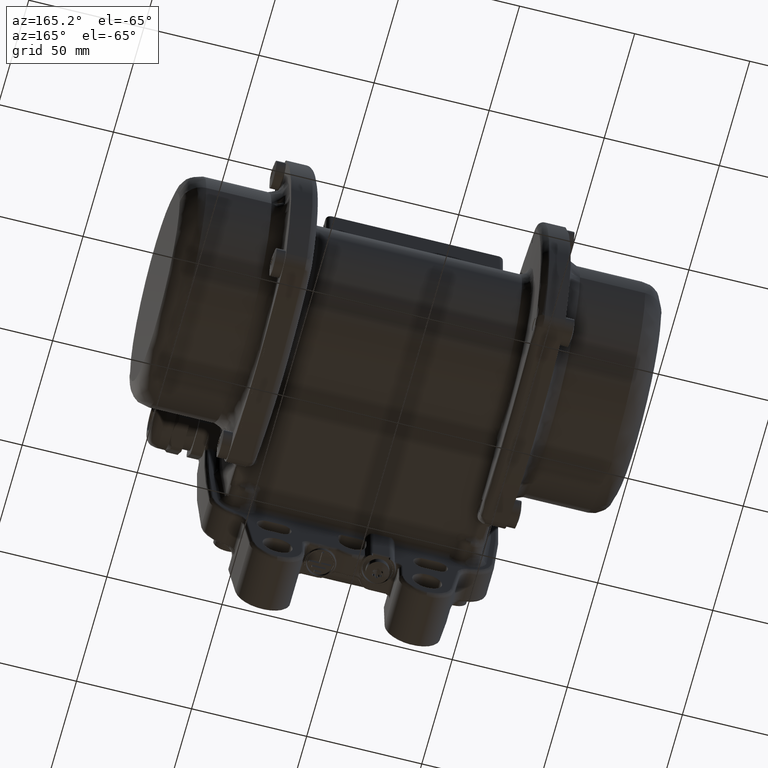
[diagram: clean part render]
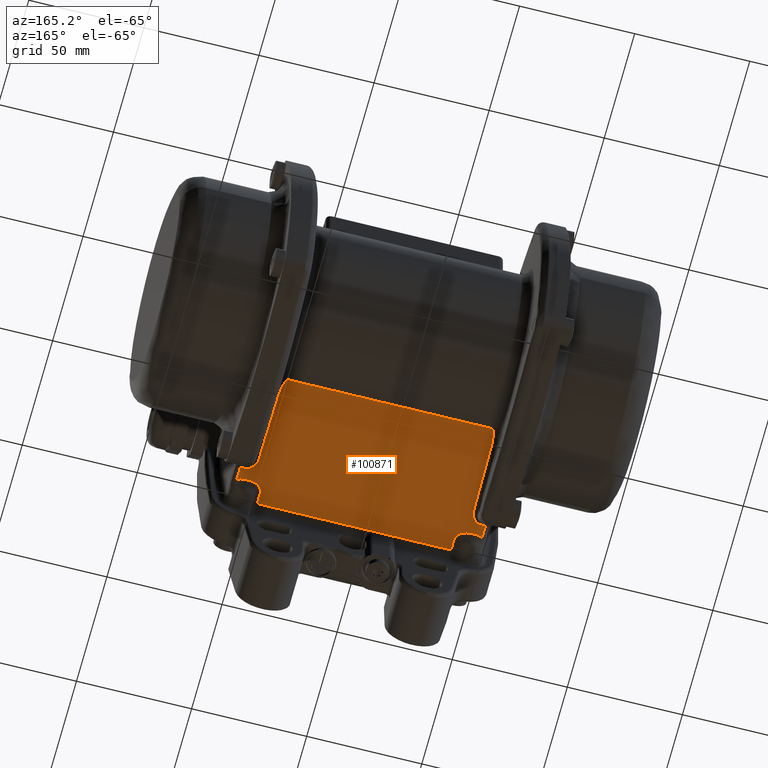
[diagram: same view with one face highlighted and labeled with its STEP entity id]
A machine part, auxiliary view. The second image highlights one B-rep face of the part: STEP entity #100871.
In plain terms, the highlighted planar face has unit normal (0, 0, 1).
Its self-contained STEP definition (entity closure, byte-faithful):
#399 = ORIENTED_EDGE ( 'NONE', *, *, #62756, .F. ) ;
#939 = B_SPLINE_CURVE_WITH_KNOTS ( 'NONE', 3,
 ( #116436, #91927, #103932, #66875, #91413, #127978, #115929, #19483, #9556, #79430 ),
 .UNSPECIFIED., .F., .F.,
 ( 4, 2, 2, 2, 4 ),
 ( 0.0000000000000000000, 0.2499999999999985600, 0.4999999999999965600, 0.7500000000000014400, 1.000000000000000000 ),
 .UNSPECIFIED. ) ;
#993 = CARTESIAN_POINT ( 'NONE',  ( 42.41015272531282700, 34.55751402269624600, -39.99999999999999300 ) ) ;
#1183 = CARTESIAN_POINT ( 'NONE',  ( 42.07230995456590300, 33.00000000000000000, -40.00000000000000000 ) ) ;
#3409 = ORIENTED_EDGE ( 'NONE', *, *, #47318, .F. ) ;
#3694 = CARTESIAN_POINT ( 'NONE',  ( 44.43510852339665000, 86.68780935962830400, -40.00000000000000000 ) ) ;
#3707 = CARTESIAN_POINT ( 'NONE',  ( -45.23509841500666100, 85.37492798556442600, -40.00000000000002800 ) ) ;
#4202 = CARTESIAN_POINT ( 'NONE',  ( 44.75367469316974900, 86.35558732255079000, -40.00000000000000000 ) ) ;
#4218 = CARTESIAN_POINT ( 'NONE',  ( -44.86918099396379500, 86.16727808343647200, -40.00000000000003600 ) ) ;
#4278 = VECTOR ( 'NONE', #18811, 1000.000000000000000 ) ;
#4741 = CARTESIAN_POINT ( 'NONE',  ( -45.74901410201017200, 83.55436873376723400, -40.00000000000003600 ) ) ;
#4931 = CARTESIAN_POINT ( 'NONE',  ( 51.62903751581500700, 42.41535147327870400, -40.00000000000000000 ) ) ;
#5235 = CARTESIAN_POINT ( 'NONE',  ( -44.89836525697040100, 86.11700285739854600, -40.00000000000002100 ) ) ;
#5258 = CARTESIAN_POINT ( 'NONE',  ( 50.74561638885769800, 37.48691009352930300, -40.00000000000000000 ) ) ;
#5741 = CARTESIAN_POINT ( 'NONE',  ( -46.12520295422113000, 80.73891077160418200, -40.00000000000002100 ) ) ;
#5901 = CARTESIAN_POINT ( 'NONE',  ( -42.21723747509175700, 34.05383829960209900, -40.00000000000000000 ) ) ;
#5975 = CARTESIAN_POINT ( 'NONE',  ( -46.65255269119248300, 47.24326558670161100, -40.00000000000000000 ) ) ;
#6066 = CARTESIAN_POINT ( 'NONE',  ( -53.24224373162119400, 16.00000000000000000, -40.00000000000000000 ) ) ;
#6941 = CARTESIAN_POINT ( 'NONE',  ( -42.66294125199089400, 35.02599397159045200, -40.00000000000000000 ) ) ;
#7520 = CARTESIAN_POINT ( 'NONE',  ( -47.30730955070688300, 45.03438624100108000, -39.99999999999998600 ) ) ;
#9262 = AXIS2_PLACEMENT_3D ( 'NONE', #90375, #79946, #54386 ) ;
#9556 = CARTESIAN_POINT ( 'NONE',  ( -46.70980772366280600, 37.40740079951030600, -40.00000000000000000 ) ) ;
#9775 = CARTESIAN_POINT ( 'NONE',  ( 70.50000000000000000, 86.78045554270720200, -40.00000000000000000 ) ) ;
#10485 = EDGE_CURVE ( 'NONE', #23591, #59887, #31596, .T. ) ;
#11401 = EDGE_CURVE ( 'NONE', #93671, #87753, #43092, .T. ) ;
#12566 = EDGE_CURVE ( 'NONE', #53262, #85167, #43511, .T. ) ;
#12895 = CARTESIAN_POINT ( 'NONE',  ( -52.71823606797970300, 37.00843732169580100, -40.00000000000000000 ) ) ;
#13968 = CARTESIAN_POINT ( 'NONE',  ( 44.44959206242624800, 36.65503254541791000, -40.00000000000000700 ) ) ;
#15096 = EDGE_CURVE ( 'NONE', #93671, #53806, #136713, .T. ) ;
#15159 = CARTESIAN_POINT ( 'NONE',  ( 44.98520743198700000, 85.95823425924798800, -40.00000000000000000 ) ) ;
#15694 = CARTESIAN_POINT ( 'NONE',  ( 44.22330798824899700, 86.78045549267349700, -40.00000000000000000 ) ) ;
#15714 = CARTESIAN_POINT ( 'NONE',  ( -44.95646399743647200, 86.01161705105127500, -40.00000000000004300 ) ) ;
#16229 = CARTESIAN_POINT ( 'NONE',  ( -45.83937831351855200, 83.10415143501967300, -40.00000000000003600 ) ) ;
#16408 = CARTESIAN_POINT ( 'NONE',  ( 49.99769316094100400, 42.69249715088506700, -40.00000000000000000 ) ) ;
#16470 = CARTESIAN_POINT ( 'NONE',  ( 46.64595282954309900, 47.57690060553059700, -40.00000000000000000 ) ) ;
#16728 = CARTESIAN_POINT ( 'NONE',  ( 46.09825430384600500, 81.21417018385599800, -40.00000000000000000 ) ) ;
#16744 = CARTESIAN_POINT ( 'NONE',  ( -45.27338166022568100, 85.27182748588364800, -40.00000000000004300 ) ) ;
#16760 = CARTESIAN_POINT ( 'NONE',  ( 45.79618127550760000, 37.19888537738369600, -40.00000000000000000 ) ) ;
#16921 = CARTESIAN_POINT ( 'NONE',  ( 47.86723690555791000, 44.22009627920175500, -40.00000000000000000 ) ) ;
#16942 = VECTOR ( 'NONE', #97917, 1000.000000000000000 ) ;
#17406 = CARTESIAN_POINT ( 'NONE',  ( -43.15772910794089500, 35.66120025120660100, -40.00000000000000000 ) ) ;
#17758 = CARTESIAN_POINT ( 'NONE',  ( -46.03811618265860500, 81.74212537557848200, -40.00000000000002800 ) ) ;
#17821 = CARTESIAN_POINT ( 'NONE',  ( -51.62903751581490000, 42.41535147327855500, -40.00000000000000000 ) ) ;
#18512 = LINE ( 'NONE', #9775, #50213 ) ;
#18700 = ORIENTED_EDGE ( 'NONE', *, *, #15096, .F. ) ;
#18811 = DIRECTION ( 'NONE',  ( 1.000000000000000000, 1.082467449009528000E-015, 2.519116367258504500E-031 ) ) ;
#19434 = CARTESIAN_POINT ( 'NONE',  ( 46.64595282954309900, 47.57690060553059700, -40.00000000000000000 ) ) ;
#19450 = CARTESIAN_POINT ( 'NONE',  ( -45.65175030007250000, 37.15194345097010100, -39.99999999999998600 ) ) ;
#19483 = CARTESIAN_POINT ( 'NONE',  ( -47.25438361114039800, 37.48691009352909700, -40.00000000000000000 ) ) ;
#22372 = B_SPLINE_CURVE_WITH_KNOTS ( 'NONE', 3,
 ( #23241, #47228, #106126, #60186 ),
 .UNSPECIFIED., .F., .F.,
 ( 4, 4 ),
 ( 0.0000000000000000000, 1.000000000000000000 ),
 .UNSPECIFIED. ) ;
#22827 = FACE_OUTER_BOUND ( 'NONE', #64089, .T. ) ;
#23185 = VERTEX_POINT ( 'NONE', #1183 ) ;
#23241 = CARTESIAN_POINT ( 'NONE',  ( 53.24224373162099500, 36.78916348696385100, -40.00000000000000000 ) ) ;
#23591 = VERTEX_POINT ( 'NONE', #12895 ) ;
#25454 = CARTESIAN_POINT ( 'NONE',  ( 42.07230995697543100, 33.23111570743315500, -39.99999999999999300 ) ) ;
#25963 = ORIENTED_EDGE ( 'NONE', *, *, #90869, .F. ) ;
#26645 = CARTESIAN_POINT ( 'NONE',  ( 44.66414746416509700, 86.48062277171209200, -40.00000000000000000 ) ) ;
#27690 = CARTESIAN_POINT ( 'NONE',  ( -44.84409424960070800, 86.20908674334782500, -40.00000000000003600 ) ) ;
#29230 = CARTESIAN_POINT ( 'NONE',  ( -44.84170805458767700, 86.21300134754022800, -40.00000000000002800 ) ) ;
#29369 = CARTESIAN_POINT ( 'NONE',  ( -42.52753429448594600, 34.79680434611345400, -40.00000000000000000 ) ) ;
#29399 = CARTESIAN_POINT ( 'NONE',  ( 50.95970335756580700, 42.45119707856356700, -40.00000000000000000 ) ) ;
#29451 = CARTESIAN_POINT ( 'NONE',  ( -50.00169432417978800, 42.69101994280578800, -39.99999999999998600 ) ) ;
#29726 = CARTESIAN_POINT ( 'NONE',  ( -45.66258619613596200, 83.95552760463886000, -40.00000000000002800 ) ) ;
#29848 = VECTOR ( 'NONE', #77508, 1000.000000000000000 ) ;
#29866 = EDGE_CURVE ( 'NONE', #23591, #66241, #939, .T. ) ;
#30306 = EDGE_CURVE ( 'NONE', #65232, #131501, #93123, .T. ) ;
#30807 = CARTESIAN_POINT ( 'NONE',  ( 51.29019227633970200, 37.40740079951480400, -40.00000000000000000 ) ) ;
#31528 = CARTESIAN_POINT ( 'NONE',  ( -50.32182255264879000, 42.58725557115058500, -39.99999999999998600 ) ) ;
#31533 = LINE ( 'NONE', #32682, #117410 ) ;
#31596 = B_SPLINE_CURVE_WITH_KNOTS ( 'NONE', 3,
 ( #45852, #154326, #129303, #82829 ),
 .UNSPECIFIED., .F., .F.,
 ( 4, 4 ),
 ( 0.0000000000000000000, 1.000000000000000000 ),
 .UNSPECIFIED. ) ;
#31939 = EDGE_CURVE ( 'NONE', #87753, #59019, #18512, .T. ) ;
#32682 = CARTESIAN_POINT ( 'NONE',  ( -70.50000000000000000, 42.41535147327855500, -40.00000000000000000 ) ) ;
#33297 = B_SPLINE_CURVE_WITH_KNOTS ( 'NONE', 3,
 ( #76192, #16760, #100150, #124217, #52706, #136223, #64661, #5258, #30807, #78214 ),
 .UNSPECIFIED., .F., .F.,
 ( 4, 2, 2, 2, 4 ),
 ( 0.0000000000000000000, 0.2499999999999985600, 0.4999999999999965600, 0.7499999999999941200, 1.000000000000000000 ),
 .UNSPECIFIED. ) ;
#34680 = ORIENTED_EDGE ( 'NONE', *, *, #11401, .T. ) ;
#36612 = CARTESIAN_POINT ( 'NONE',  ( -46.14443353880359700, 79.99091226099780300, -40.00000000000000000 ) ) ;
#36626 = CARTESIAN_POINT ( 'NONE',  ( 46.14443353880389500, 79.99091226099770300, -40.00000000000000000 ) ) ;
#37703 = CARTESIAN_POINT ( 'NONE',  ( 44.14511888885275000, 86.78045554270730100, -40.00000000000000000 ) ) ;
#39367 = CARTESIAN_POINT ( 'NONE',  ( 49.10071835805770500, 43.12849406874681800, -40.00000000000000000 ) ) ;
#39425 = CARTESIAN_POINT ( 'NONE',  ( -70.50000000000000000, 42.41535147327855500, -40.00000000000000000 ) ) ;
#39697 = CARTESIAN_POINT ( 'NONE',  ( 45.86285943988070100, 83.02856132989830900, -40.00000000000000000 ) ) ;
#39719 = EDGE_CURVE ( 'NONE', #151731, #152944, #131112, .T. ) ;
#39891 = CARTESIAN_POINT ( 'NONE',  ( 46.81772136186941000, 46.26842380138009500, -39.99999999999999300 ) ) ;
#40223 = CARTESIAN_POINT ( 'NONE',  ( -44.37775055652414800, 86.78045554270728700, -40.00000000000002800 ) ) ;
#40800 = ORIENTED_EDGE ( 'NONE', *, *, #118224, .F. ) ;
#40880 = CARTESIAN_POINT ( 'NONE',  ( -43.54468144938874700, 36.02810084505475200, -39.99999999999998600 ) ) ;
#41238 = CARTESIAN_POINT ( 'NONE',  ( -45.31402401251874300, 85.15851900380312100, -40.00000000000004300 ) ) ;
#41422 = CARTESIAN_POINT ( 'NONE',  ( 47.15733749855640200, 45.33002625080218500, -39.99999999999998600 ) ) ;
#41468 = CARTESIAN_POINT ( 'NONE',  ( -51.29486178307959700, 42.41535147579329400, -39.99999999999998600 ) ) ;
#42437 = CARTESIAN_POINT ( 'NONE',  ( -42.30443067397194300, 34.31128228104635300, -40.00000000000000000 ) ) ;
#43092 = B_SPLINE_CURVE_WITH_KNOTS ( 'NONE', 3,
 ( #77203, #99627, #5741, #113156, #52686, #89153, #17758, #87627, #63087, #16229, #135679, #147182, #4741, #148210, #101143, #75121, #29726, #53186, #147696, #41238, #16744, #75649, #88132, #111103, #3707, #87126, #111619, #76170, #15714, #5235, #4218, #99092, #100634, #27690, #123139, #29230, #51667, #40223, #112127 ),
 .UNSPECIFIED., .F., .F.,
 ( 4, 1, 1, 2, 2, 1, 1, 1, 1, 1, 2, 2, 1, 1, 1, 1, 1, 1, 2, 2, 1, 1, 1, 1, 1, 1, 2, 2, 4 ),
 ( 0.0000000000000000000, 0.1249999999999945600, 0.1874999999999918400, 0.2187499999999905900, 0.2499999999999893400, 0.3749999999999729700, 0.4374999999999617500, 0.4687499999999561500, 0.4843749999999529800, 0.4921874999999542600, 0.4960937499999574200, 0.4999999999999605900, 0.6250000000000056600, 0.6875000000000277600, 0.7187500000000388600, 0.7343750000000438500, 0.7421875000000494000, 0.7460937500000516300, 0.7480468750000557300, 0.7500000000000598400, 0.8125000000001327800, 0.8437500000001660900, 0.8593750000001827400, 0.8671875000001910700, 0.8710937500001932900, 0.8730468750001964000, 0.8740234375001978400, 0.8750000000001994000, 1.000000000000000000 ),
 .UNSPECIFIED. ) ;
#43511 = LINE ( 'NONE', #126780, #4278 ) ;
#43966 = CARTESIAN_POINT ( 'NONE',  ( 46.24521464408050500, 69.18524421620588800, -40.00000000000000000 ) ) ;
#45852 = CARTESIAN_POINT ( 'NONE',  ( -52.71823606797970300, 37.00843732169580100, -40.00000000000000000 ) ) ;
#47228 = CARTESIAN_POINT ( 'NONE',  ( 52.81468671210134100, 36.99034888353524100, -40.00000000000001400 ) ) ;
#47318 = EDGE_CURVE ( 'NONE', #23185, #60117, #154416, .T. ) ;
#47422 = CARTESIAN_POINT ( 'NONE',  ( -53.24224373162119400, 36.78916348696365200, -40.00000000000000000 ) ) ;
#48345 = B_SPLINE_CURVE_WITH_KNOTS ( 'NONE', 3,
 ( #36626, #51651, #16728, #52161, #39697, #146650, #122605, #62590, #100113, #75107, #123650, #15159, #124176, #4202, #26645, #99612, #3694, #52674, #15694, #75637 ),
 .UNSPECIFIED., .F., .F.,
 ( 4, 2, 2, 2, 2, 2, 2, 2, 2, 4 ),
 ( 0.0000000000000000000, 0.2500000000000003300, 0.5000000000000000000, 0.6250000000000005600, 0.7500000000000003300, 0.8125000000000003300, 0.8750000000000002200, 0.9375000000000001100, 0.9687500000000001100, 1.000000000000000000 ),
 .UNSPECIFIED. ) ;
#49442 = CARTESIAN_POINT ( 'NONE',  ( 45.28176393202030400, 37.00843732169600000, -40.00000000000000000 ) ) ;
#50213 = VECTOR ( 'NONE', #152224, 1000.000000000000000 ) ;
#51651 = CARTESIAN_POINT ( 'NONE',  ( 46.13870939416469200, 80.60465014775249400, -40.00000000000000000 ) ) ;
#51667 = CARTESIAN_POINT ( 'NONE',  ( -44.60934652772049000, 86.59228420337730400, -40.00000000000004300 ) ) ;
#52161 = CARTESIAN_POINT ( 'NONE',  ( 45.96021182444179900, 82.42609451123931300, -40.00000000000000000 ) ) ;
#52674 = CARTESIAN_POINT ( 'NONE',  ( 44.29869726119085300, 86.75838040459011300, -40.00000000000000000 ) ) ;
#52686 = CARTESIAN_POINT ( 'NONE',  ( -46.06237724441498900, 81.50778584476746900, -40.00000000000003600 ) ) ;
#52706 = CARTESIAN_POINT ( 'NONE',  ( 47.98407594402100100, 37.55790202036969600, -40.00000000000000000 ) ) ;
#53186 = CARTESIAN_POINT ( 'NONE',  ( -45.54511707543388600, 84.42905863885496800, -40.00000000000004300 ) ) ;
#53262 = VERTEX_POINT ( 'NONE', #138168 ) ;
#53806 = VERTEX_POINT ( 'NONE', #107490 ) ;
#53827 = CARTESIAN_POINT ( 'NONE',  ( 46.43223312472050400, 58.38082255412979300, -40.00000000000000000 ) ) ;
#53917 = CARTESIAN_POINT ( 'NONE',  ( -46.68854483394228800, 46.91373148794221500, -40.00000000000000000 ) ) ;
#54361 = CARTESIAN_POINT ( 'NONE',  ( -42.07230995820260200, 33.26993304098385100, -40.00000000000000000 ) ) ;
#54386 = DIRECTION ( 'NONE',  ( -9.992007221626410800E-016, -1.000000000000000000, 5.090755090363980200E-016 ) ) ;
#54433 = CARTESIAN_POINT ( 'NONE',  ( -46.81902329715908500, 46.26289490484288100, -40.00000000000000000 ) ) ;
#54886 = CARTESIAN_POINT ( 'NONE',  ( -45.14438373429809600, 36.97960313883510300, -39.99999999999998600 ) ) ;
#55482 = CARTESIAN_POINT ( 'NONE',  ( -50.96666524445807800, 42.45036408627228800, -39.99999999999998600 ) ) ;
#57104 = VERTEX_POINT ( 'NONE', #136075 ) ;
#57747 = EDGE_CURVE ( 'NONE', #53806, #152944, #133675, .T. ) ;
#59019 = VERTEX_POINT ( 'NONE', #37703 ) ;
#59887 = VERTEX_POINT ( 'NONE', #47422 ) ;
#60100 = VERTEX_POINT ( 'NONE', #113993 ) ;
#60117 = VERTEX_POINT ( 'NONE', #100953 ) ;
#60186 = CARTESIAN_POINT ( 'NONE',  ( 51.82783165667209600, 37.27759316566344700, -40.00000000000000000 ) ) ;
#60910 = CARTESIAN_POINT ( 'NONE',  ( 42.07230995456590300, 33.00000000000000000, -40.00000000000000000 ) ) ;
#61575 = LINE ( 'NONE', #6066, #29848 ) ;
#62590 = CARTESIAN_POINT ( 'NONE',  ( 45.42968112755840300, 84.81520272274468700, -40.00000000000000000 ) ) ;
#62756 = EDGE_CURVE ( 'NONE', #81743, #80976, #73207, .T. ) ;
#62814 = CARTESIAN_POINT ( 'NONE',  ( 53.24224373162099500, 36.78916348696385100, -40.00000000000000000 ) ) ;
#63087 = CARTESIAN_POINT ( 'NONE',  ( -45.93122443820190200, 82.58295851742019500, -40.00000000000003600 ) ) ;
#63796 = CARTESIAN_POINT ( 'NONE',  ( 51.29592629831061100, 42.41535147438476400, -40.00000000000000000 ) ) ;
#64089 = EDGE_LOOP ( 'NONE', ( #105891, #136167, #18700, #34680, #89837, #93920, #399, #97765, #122809, #94612, #96939, #127314, #3409, #129177, #154666, #112412, #25963, #122931, #89358, #40800 ) ) ;
#64661 = CARTESIAN_POINT ( 'NONE',  ( 49.64749870667000000, 37.57942865089079700, -40.00000000000000000 ) ) ;
#65232 = VERTEX_POINT ( 'NONE', #62814 ) ;
#65885 = CARTESIAN_POINT ( 'NONE',  ( -47.15815865923988100, 45.32871473125828700, -39.99999999999998600 ) ) ;
#66241 = VERTEX_POINT ( 'NONE', #102231 ) ;
#66875 = CARTESIAN_POINT ( 'NONE',  ( -50.56693602222539900, 37.51040940172944700, -40.00000000000000000 ) ) ;
#66910 = CARTESIAN_POINT ( 'NONE',  ( -49.11041589816080900, 43.12236002398130100, -40.00000000000000000 ) ) ;
#68449 = CARTESIAN_POINT ( 'NONE',  ( -42.07230995456610100, 33.00000000000000000, -40.00000000000000000 ) ) ;
#68994 = CARTESIAN_POINT ( 'NONE',  ( 42.07230995456590300, 28.00000000000000000, -40.00000000000000000 ) ) ;
#71089 = CARTESIAN_POINT ( 'NONE',  ( 42.07230995456590300, 16.00000000000000000, -40.00000000000000000 ) ) ;
#73169 = EDGE_CURVE ( 'NONE', #65232, #57104, #22372, .T. ) ;
#73207 = B_SPLINE_CURVE_WITH_KNOTS ( 'NONE', 3,
 ( #19434, #53827, #43966, #137872 ),
 .UNSPECIFIED., .F., .F.,
 ( 4, 4 ),
 ( 0.0000000000000000000, 1.000000000000000000 ),
 .UNSPECIFIED. ) ;
#73420 = CARTESIAN_POINT ( 'NONE',  ( 43.67958800024799600, 36.15422273715085300, -40.00000000000000700 ) ) ;
#75107 = CARTESIAN_POINT ( 'NONE',  ( 45.17309293750150800, 85.53802420354091400, -40.00000000000000000 ) ) ;
#75121 = CARTESIAN_POINT ( 'NONE',  ( -45.73761676521962000, 83.60770137791674000, -40.00000000000003600 ) ) ;
#75637 = CARTESIAN_POINT ( 'NONE',  ( 44.14511888885275000, 86.78045554270730100, -40.00000000000000000 ) ) ;
#75649 = CARTESIAN_POINT ( 'NONE',  ( -45.25283260817121800, 85.32759584348703200, -40.00000000000005000 ) ) ;
#76151 = CARTESIAN_POINT ( 'NONE',  ( -46.64595282954299900, 47.57690060553049700, -40.00000000000000000 ) ) ;
#76170 = CARTESIAN_POINT ( 'NONE',  ( -45.07158233617992200, 85.78150402127109000, -40.00000000000004300 ) ) ;
#76192 = CARTESIAN_POINT ( 'NONE',  ( 45.28176393202030400, 37.00843732169600000, -40.00000000000000000 ) ) ;
#77177 = CARTESIAN_POINT ( 'NONE',  ( -46.43223312472640200, 58.38082255412710000, -40.00000000000000000 ) ) ;
#77203 = CARTESIAN_POINT ( 'NONE',  ( -46.14443353880359700, 79.99091226099780300, -40.00000000000000000 ) ) ;
#77379 = CARTESIAN_POINT ( 'NONE',  ( 46.64595282954309900, 47.57690060553059700, -40.00000000000000000 ) ) ;
#77423 = CARTESIAN_POINT ( 'NONE',  ( -46.64595282954299900, 47.57690060553049700, -40.00000000000000000 ) ) ;
#77508 = DIRECTION ( 'NONE',  ( -9.992007221626410800E-016, -1.000000000000000000, 5.090755090363980200E-016 ) ) ;
#77912 = CARTESIAN_POINT ( 'NONE',  ( -48.70522574495179000, 43.41099310363775000, -40.00000000000000000 ) ) ;
#78214 = CARTESIAN_POINT ( 'NONE',  ( 51.82783165667209600, 37.27759316566344700, -40.00000000000000000 ) ) ;
#78820 = VECTOR ( 'NONE', #95695, 1000.000000000000000 ) ;
#78870 = CARTESIAN_POINT ( 'NONE',  ( -42.97831544454889800, 35.45902248130364900, -40.00000000000000000 ) ) ;
#79430 = CARTESIAN_POINT ( 'NONE',  ( -46.17216834332789700, 37.27759316566325500, -40.00000000000000000 ) ) ;
#79946 = DIRECTION ( 'NONE',  ( 1.152314403678697800E-030, 5.090755090363980200E-016, 1.000000000000000000 ) ) ;
#80976 = VERTEX_POINT ( 'NONE', #93915 ) ;
#81743 = VERTEX_POINT ( 'NONE', #16470 ) ;
#82829 = CARTESIAN_POINT ( 'NONE',  ( -53.24224373162119400, 36.78916348696365200, -40.00000000000000000 ) ) ;
#84476 = LINE ( 'NONE', #71089, #114389 ) ;
#84894 = CARTESIAN_POINT ( 'NONE',  ( 42.17983863206367800, 33.90956636772779800, -39.99999999999999300 ) ) ;
#85167 = VERTEX_POINT ( 'NONE', #68994 ) ;
#85363 = CARTESIAN_POINT ( 'NONE',  ( 53.24224373162110200, 42.41535147327870400, -40.00000000000000000 ) ) ;
#85914 = CARTESIAN_POINT ( 'NONE',  ( 43.33092128481632700, 35.85780029113179500, -39.99999999999999300 ) ) ;
#86464 = CARTESIAN_POINT ( 'NONE',  ( -42.07230995456610100, 16.00000000000000000, -40.00000000000000000 ) ) ;
#87126 = CARTESIAN_POINT ( 'NONE',  ( -45.23412308881116000, 85.37751317605987800, -40.00000000000002800 ) ) ;
#87297 = CARTESIAN_POINT ( 'NONE',  ( 50.31083824091900400, 42.59025040083681500, -40.00000000000000000 ) ) ;
#87627 = CARTESIAN_POINT ( 'NONE',  ( -45.99427801721369500, 82.12708957745999800, -40.00000000000004300 ) ) ;
#87753 = VERTEX_POINT ( 'NONE', #129137 ) ;
#88132 = CARTESIAN_POINT ( 'NONE',  ( -45.24250111316703000, 85.35525855142952900, -40.00000000000003600 ) ) ;
#88319 = CARTESIAN_POINT ( 'NONE',  ( 48.56418149794051000, 43.51226137073416600, -40.00000000000000000 ) ) ;
#88827 = CARTESIAN_POINT ( 'NONE',  ( 48.31664080002089200, 43.72933508997066100, -40.00000000000000000 ) ) ;
#89153 = CARTESIAN_POINT ( 'NONE',  ( -46.04663222273156000, 81.66308362043365300, -40.00000000000004300 ) ) ;
#89358 = ORIENTED_EDGE ( 'NONE', *, *, #10485, .T. ) ;
#89631 = B_SPLINE_CURVE_WITH_KNOTS ( 'NONE', 3,
 ( #4931, #63796, #29399, #87297, #16408, #123856, #39367, #88319, #88827, #99802, #16921, #147367, #100315, #112831, #41422, #98763, #39891, #124884, #112311, #77379 ),
 .UNSPECIFIED., .F., .F.,
 ( 4, 2, 2, 2, 2, 2, 2, 2, 2, 4 ),
 ( 0.0000000000000000000, 0.1250000000000001900, 0.2499999999999991700, 0.3749999999999992800, 0.5000000000000000000, 0.5625000000000001100, 0.6249999999999996700, 0.7499999999999996700, 0.8750000000000000000, 1.000000000000000000 ),
 .UNSPECIFIED. ) ;
#89837 = ORIENTED_EDGE ( 'NONE', *, *, #31939, .T. ) ;
#89887 = CARTESIAN_POINT ( 'NONE',  ( -48.20521419210008700, 43.84824349672240400, -40.00000000000000000 ) ) ;
#90211 = CARTESIAN_POINT ( 'NONE',  ( -53.24224373162110200, 42.41535147327855500, -40.00000000000000000 ) ) ;
#90375 = CARTESIAN_POINT ( 'NONE',  ( 50.00000000000000000, 16.00000000000000000, -40.00000000000000000 ) ) ;
#90869 = EDGE_CURVE ( 'NONE', #66241, #152540, #96897, .T. ) ;
#91405 = PLANE ( 'NONE',  #9262 ) ;
#91413 = CARTESIAN_POINT ( 'NONE',  ( -50.01592405597899900, 37.55790202037144400, -40.00000000000000000 ) ) ;
#91927 = CARTESIAN_POINT ( 'NONE',  ( -52.20381872449190300, 37.19888537738584200, -40.00000000000000000 ) ) ;
#93123 = LINE ( 'NONE', #150840, #149162 ) ;
#93671 = VERTEX_POINT ( 'NONE', #36612 ) ;
#93915 = CARTESIAN_POINT ( 'NONE',  ( 46.14443353880389500, 79.99091226099770300, -40.00000000000000000 ) ) ;
#93920 = ORIENTED_EDGE ( 'NONE', *, *, #149220, .F. ) ;
#94612 = ORIENTED_EDGE ( 'NONE', *, *, #30306, .F. ) ;
#95695 = DIRECTION ( 'NONE',  ( 1.000000000000000000, 1.082467449009528000E-015, 2.519116367258504500E-031 ) ) ;
#95844 = CARTESIAN_POINT ( 'NONE',  ( 42.09412985403237400, 33.45921800939969900, -39.99999999999999300 ) ) ;
#96873 = CARTESIAN_POINT ( 'NONE',  ( 42.88331552679038300, 35.33631802952919500, -39.99999999999999300 ) ) ;
#96897 = B_SPLINE_CURVE_WITH_KNOTS ( 'NONE', 3,
 ( #149880, #19450, #54886, #137390, #136864, #150414, #40880, #17406, #78870, #6941, #29369, #42437, #5901, #101295, #54361, #100786 ),
 .UNSPECIFIED., .F., .F.,
 ( 4, 2, 2, 2, 2, 2, 2, 4 ),
 ( 0.0000000000000000000, 0.2499999999999978100, 0.3750000000000008300, 0.4999999999999961700, 0.6249999999999986700, 0.7499999999999940000, 0.8749999999999970000, 1.000000000000000000 ),
 .UNSPECIFIED. ) ;
#96939 = ORIENTED_EDGE ( 'NONE', *, *, #73169, .T. ) ;
#97380 = CARTESIAN_POINT ( 'NONE',  ( 42.74684582541383500, 35.14908705737060000, -39.99999999999999300 ) ) ;
#97765 = ORIENTED_EDGE ( 'NONE', *, *, #134261, .F. ) ;
#97917 = DIRECTION ( 'NONE',  ( -9.992007221626410800E-016, -1.000000000000000000, 5.090755090363980200E-016 ) ) ;
#98763 = CARTESIAN_POINT ( 'NONE',  ( 46.91164833039651000, 45.94873313122440100, -39.99999999999999300 ) ) ;
#99092 = CARTESIAN_POINT ( 'NONE',  ( -44.85455513926704200, 86.19181127717156700, -40.00000000000003600 ) ) ;
#99612 = CARTESIAN_POINT ( 'NONE',  ( 44.49667024563655100, 86.63994622697639200, -40.00000000000000000 ) ) ;
#99627 = CARTESIAN_POINT ( 'NONE',  ( -46.14166498970175200, 80.28775384170454300, -40.00000000000003600 ) ) ;
#99802 = CARTESIAN_POINT ( 'NONE',  ( 47.97602058073349700, 44.09224372132834400, -40.00000000000000000 ) ) ;
#100113 = CARTESIAN_POINT ( 'NONE',  ( 45.33664156031009200, 85.10803007783971500, -40.00000000000000000 ) ) ;
#100150 = CARTESIAN_POINT ( 'NONE',  ( 46.33870979340839800, 37.33159457114484800, -40.00000000000000000 ) ) ;
#100315 = CARTESIAN_POINT ( 'NONE',  ( 47.57010072901040600, 44.61827921452050600, -40.00000000000000000 ) ) ;
#100634 = CARTESIAN_POINT ( 'NONE',  ( -44.84723378112038000, 86.20392676921810000, -40.00000000000003600 ) ) ;
#100786 = CARTESIAN_POINT ( 'NONE',  ( -42.07230995456610100, 33.00000000000000000, -40.00000000000000000 ) ) ;
#100871 = ADVANCED_FACE ( 'NONE', ( #22827 ), #91405, .F. ) ;
#100953 = CARTESIAN_POINT ( 'NONE',  ( 45.28176393202030400, 37.00843732169600000, -40.00000000000000000 ) ) ;
#101143 = CARTESIAN_POINT ( 'NONE',  ( -45.73926951468916300, 83.60000407661920000, -40.00000000000003600 ) ) ;
#101295 = CARTESIAN_POINT ( 'NONE',  ( -42.10199594579815100, 33.53458466863445200, -40.00000000000000000 ) ) ;
#101654 = CARTESIAN_POINT ( 'NONE',  ( -46.14443353880359700, 79.99091226099780300, -40.00000000000000000 ) ) ;
#102231 = CARTESIAN_POINT ( 'NONE',  ( -46.17216834332789700, 37.27759316566325500, -40.00000000000000000 ) ) ;
#102779 = DIRECTION ( 'NONE',  ( 9.992007221626410800E-016, 1.000000000000000000, -5.090755090363980200E-016 ) ) ;
#103932 = CARTESIAN_POINT ( 'NONE',  ( -51.66129020659360500, 37.33159457114470600, -40.00000000000000000 ) ) ;
#105891 = ORIENTED_EDGE ( 'NONE', *, *, #39719, .T. ) ;
#106126 = CARTESIAN_POINT ( 'NONE',  ( 52.34321602045172000, 37.15315877643515600, -40.00000000000001400 ) ) ;
#107490 = CARTESIAN_POINT ( 'NONE',  ( -46.64595282954299900, 47.57690060553049700, -40.00000000000000000 ) ) ;
#110893 = EDGE_CURVE ( 'NONE', #152540, #53262, #114018, .T. ) ;
#111103 = CARTESIAN_POINT ( 'NONE',  ( -45.23806112195586600, 85.36706653964930100, -40.00000000000002800 ) ) ;
#111619 = CARTESIAN_POINT ( 'NONE',  ( -45.16840523992227200, 85.55110756645562700, -40.00000000000002800 ) ) ;
#112127 = CARTESIAN_POINT ( 'NONE',  ( -44.14511888885250100, 86.78045554270720200, -40.00000000000000000 ) ) ;
#112311 = CARTESIAN_POINT ( 'NONE',  ( 46.65255898599820500, 47.24294739862999400, -39.99999999999999300 ) ) ;
#112412 = ORIENTED_EDGE ( 'NONE', *, *, #110893, .F. ) ;
#112831 = CARTESIAN_POINT ( 'NONE',  ( 47.30663531718740000, 45.03610545773739900, -39.99999999999998600 ) ) ;
#113156 = CARTESIAN_POINT ( 'NONE',  ( -46.08445612546167100, 81.27557600112305600, -40.00000000000003600 ) ) ;
#113993 = CARTESIAN_POINT ( 'NONE',  ( 51.62903751581500700, 42.41535147327870400, -40.00000000000000000 ) ) ;
#114018 = LINE ( 'NONE', #86464, #16942 ) ;
#114389 = VECTOR ( 'NONE', #130639, 1000.000000000000000 ) ;
#115929 = CARTESIAN_POINT ( 'NONE',  ( -48.35250129333189800, 37.57942865089059800, -40.00000000000000000 ) ) ;
#116436 = CARTESIAN_POINT ( 'NONE',  ( -52.71823606797970300, 37.00843732169580100, -40.00000000000000000 ) ) ;
#117410 = VECTOR ( 'NONE', #127092, 1000.000000000000000 ) ;
#118224 = EDGE_CURVE ( 'NONE', #151731, #59887, #61575, .T. ) ;
#119667 = EDGE_CURVE ( 'NONE', #60100, #131501, #31533, .T. ) ;
#120901 = CARTESIAN_POINT ( 'NONE',  ( 44.85742546632899100, 36.85133834933561300, -40.00000000000000700 ) ) ;
#121414 = CARTESIAN_POINT ( 'NONE',  ( 42.24463430424003000, 34.13311354699764900, -39.99999999999999300 ) ) ;
#122159 = EDGE_CURVE ( 'NONE', #60117, #57104, #33297, .T. ) ;
#122605 = CARTESIAN_POINT ( 'NONE',  ( 45.59578788322080100, 84.22479405024931500, -40.00000000000000000 ) ) ;
#122809 = ORIENTED_EDGE ( 'NONE', *, *, #119667, .T. ) ;
#122931 = ORIENTED_EDGE ( 'NONE', *, *, #29866, .F. ) ;
#123139 = CARTESIAN_POINT ( 'NONE',  ( -44.84200082712100500, 86.21251953063330100, -40.00000000000003600 ) ) ;
#123650 = CARTESIAN_POINT ( 'NONE',  ( 45.11442398981959900, 85.68002823290089500, -40.00000000000000000 ) ) ;
#123856 = CARTESIAN_POINT ( 'NONE',  ( 49.39335910339960400, 42.96063689693171000, -40.00000000000000000 ) ) ;
#124176 = CARTESIAN_POINT ( 'NONE',  ( 44.91459190802059700, 86.09507018611620300, -40.00000000000000000 ) ) ;
#124217 = CARTESIAN_POINT ( 'NONE',  ( 47.43306397777269700, 37.51040940172965300, -40.00000000000000000 ) ) ;
#124884 = CARTESIAN_POINT ( 'NONE',  ( 46.68858461057990900, 46.91450780249569900, -39.99999999999999300 ) ) ;
#125184 = CARTESIAN_POINT ( 'NONE',  ( -46.24521464392840600, 69.18524421620648500, -40.00000000000000000 ) ) ;
#126780 = CARTESIAN_POINT ( 'NONE',  ( 50.00000000000000000, 28.00000000000000000, -40.00000000000000000 ) ) ;
#126977 = CARTESIAN_POINT ( 'NONE',  ( -48.57370844799939400, 43.51501871443724700, -40.00000000000000000 ) ) ;
#127092 = DIRECTION ( 'NONE',  ( 1.000000000000000000, 1.082467449009528000E-015, 2.519116367258504500E-031 ) ) ;
#127314 = ORIENTED_EDGE ( 'NONE', *, *, #122159, .F. ) ;
#127978 = CARTESIAN_POINT ( 'NONE',  ( -48.90837760269440100, 37.59252664814520300, -40.00000000000000000 ) ) ;
#129137 = CARTESIAN_POINT ( 'NONE',  ( -44.14511888885250100, 86.78045554270720200, -40.00000000000000000 ) ) ;
#129177 = ORIENTED_EDGE ( 'NONE', *, *, #149893, .F. ) ;
#129303 = CARTESIAN_POINT ( 'NONE',  ( -53.07428874411511500, 36.86819409393520900, -40.00000000000001400 ) ) ;
#130639 = DIRECTION ( 'NONE',  ( 9.992007221626410800E-016, 1.000000000000000000, -5.090755090363980200E-016 ) ) ;
#131112 = LINE ( 'NONE', #39425, #78820 ) ;
#131501 = VERTEX_POINT ( 'NONE', #85363 ) ;
#133440 = CARTESIAN_POINT ( 'NONE',  ( 42.51103518980657700, 34.76048456269580100, -39.99999999999999300 ) ) ;
#133675 = B_SPLINE_CURVE_WITH_KNOTS ( 'NONE', 3,
 ( #77423, #5975, #53917, #54433, #137461, #65885, #7520, #137955, #149447, #89887, #149953, #126977, #77912, #66910, #150484, #29451, #31528, #55482, #41468, #139008 ),
 .UNSPECIFIED., .F., .F.,
 ( 4, 2, 2, 2, 2, 2, 2, 2, 2, 4 ),
 ( 0.0000000000000000000, 0.1249999999999996400, 0.2500000000000003900, 0.3749999999999998300, 0.4999999999999998900, 0.5624999999999996700, 0.6250000000000000000, 0.7500000000000000000, 0.8750000000000000000, 1.000000000000000000 ),
 .UNSPECIFIED. ) ;
#134261 = EDGE_CURVE ( 'NONE', #60100, #81743, #89631, .T. ) ;
#135679 = CARTESIAN_POINT ( 'NONE',  ( -45.78888434721781700, 83.36208434906423300, -40.00000000000003600 ) ) ;
#136075 = CARTESIAN_POINT ( 'NONE',  ( 51.82783165667209600, 37.27759316566344700, -40.00000000000000000 ) ) ;
#136167 = ORIENTED_EDGE ( 'NONE', *, *, #57747, .F. ) ;
#136223 = CARTESIAN_POINT ( 'NONE',  ( 49.09162239730559900, 37.59252664814729900, -40.00000000000000000 ) ) ;
#136713 = B_SPLINE_CURVE_WITH_KNOTS ( 'NONE', 3,
 ( #101654, #125184, #77177, #76151 ),
 .UNSPECIFIED., .F., .F.,
 ( 4, 4 ),
 ( 0.0000000000000000000, 1.000000000000000000 ),
 .UNSPECIFIED. ) ;
#136864 = CARTESIAN_POINT ( 'NONE',  ( -44.19891839440020200, 36.49709400381304600, -39.99999999999998600 ) ) ;
#137390 = CARTESIAN_POINT ( 'NONE',  ( -44.42988142403290700, 36.62930954866509800, -39.99999999999998600 ) ) ;
#137461 = CARTESIAN_POINT ( 'NONE',  ( -46.91420538887159400, 45.94154786131868900, -40.00000000000000000 ) ) ;
#137872 = CARTESIAN_POINT ( 'NONE',  ( 46.14443353880389500, 79.99091226099770300, -40.00000000000000000 ) ) ;
#137955 = CARTESIAN_POINT ( 'NONE',  ( -47.66317462638520700, 44.47133545848998900, -40.00000000000000000 ) ) ;
#138168 = CARTESIAN_POINT ( 'NONE',  ( -42.07230995456610100, 28.00000000000000000, -40.00000000000000000 ) ) ;
#139008 = CARTESIAN_POINT ( 'NONE',  ( -51.62903751581490000, 42.41535147327855500, -40.00000000000000000 ) ) ;
#146650 = CARTESIAN_POINT ( 'NONE',  ( 45.66872458403840100, 83.92632646263550100, -40.00000000000000000 ) ) ;
#147182 = CARTESIAN_POINT ( 'NONE',  ( -45.76249463807766200, 83.49038491989767900, -40.00000000000002800 ) ) ;
#147367 = CARTESIAN_POINT ( 'NONE',  ( 47.66455166926570500, 44.48287119566614900, -40.00000000000000000 ) ) ;
#147696 = CARTESIAN_POINT ( 'NONE',  ( -45.39348570984153500, 84.92481497214701800, -40.00000000000003600 ) ) ;
#148210 = CARTESIAN_POINT ( 'NONE',  ( -45.74317551194606300, 83.58175469580834300, -40.00000000000004300 ) ) ;
#149162 = VECTOR ( 'NONE', #102779, 1000.000000000000000 ) ;
#149220 = EDGE_CURVE ( 'NONE', #80976, #59019, #48345, .T. ) ;
#149447 = CARTESIAN_POINT ( 'NONE',  ( -47.86648016923370400, 44.20857750555300200, -40.00000000000000000 ) ) ;
#149880 = CARTESIAN_POINT ( 'NONE',  ( -46.17216834332789700, 37.27759316566325500, -40.00000000000000000 ) ) ;
#149893 = EDGE_CURVE ( 'NONE', #85167, #23185, #84476, .T. ) ;
#149953 = CARTESIAN_POINT ( 'NONE',  ( -48.32399448741299600, 43.73347831526590600, -40.00000000000000000 ) ) ;
#150414 = CARTESIAN_POINT ( 'NONE',  ( -43.75441173144765400, 36.19530420495729600, -39.99999999999998600 ) ) ;
#150484 = CARTESIAN_POINT ( 'NONE',  ( -49.39660079847931200, 42.95890403542144800, -40.00000000000000000 ) ) ;
#150840 = CARTESIAN_POINT ( 'NONE',  ( 53.24224373162099500, 16.00000000000000000, -40.00000000000000000 ) ) ;
#151731 = VERTEX_POINT ( 'NONE', #90211 ) ;
#152224 = DIRECTION ( 'NONE',  ( 1.000000000000000000, 7.763057492226890700E-016, 3.546604710857649400E-031 ) ) ;
#152540 = VERTEX_POINT ( 'NONE', #68449 ) ;
#152944 = VERTEX_POINT ( 'NONE', #17821 ) ;
#154326 = CARTESIAN_POINT ( 'NONE',  ( -52.89961952290131100, 36.94128537217927300, -40.00000000000001400 ) ) ;
#154416 = B_SPLINE_CURVE_WITH_KNOTS ( 'NONE', 3,
 ( #60910, #25454, #95844, #84894, #121414, #993, #133440, #97380, #96873, #85914, #73420, #13968, #120901, #49442 ),
 .UNSPECIFIED., .F., .F.,
 ( 4, 2, 2, 2, 2, 2, 4 ),
 ( 0.0000000000000000000, 0.1249999999999995000, 0.2499999999999988300, 0.3750000000000001100, 0.4999999999999996100, 0.7499999999999995600, 1.000000000000000000 ),
 .UNSPECIFIED. ) ;
#154666 = ORIENTED_EDGE ( 'NONE', *, *, #12566, .F. ) ;